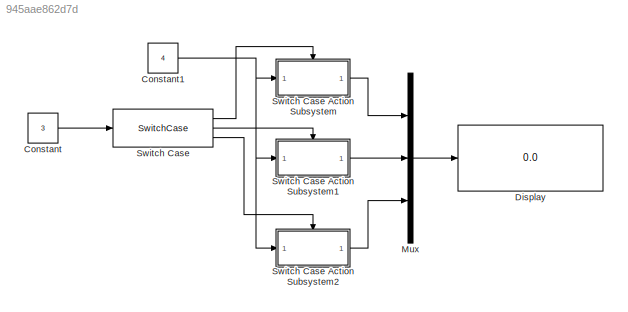
MODEL slx_945aae862d7d
KIND model
CONFIG AbsTol = auto
CONFIG EnableMultiTasking = off
CONFIG FixedStep = auto
CONFIG MaxStep = auto
CONFIG MinStep = auto
CONFIG RelTol = 1e-3
CONFIG SampleTimeConstraint = Unconstrained
CONFIG Solver = VariableStepAuto
CONFIG SolverName = VariableStepAuto
CONFIG StartTime = 0.0
CONFIG StopTime = 10.0
BLOCK [Constant] Constant
  Value = 3
BLOCK [Constant] Constant1
  Value = 4
BLOCK [Display] Display
  Decimation = 1
  Ports = [1]
BLOCK [Mux] Mux
  DisplayOption = bar
  Inputs = 3
  Ports = [3, 1]
BLOCK [SwitchCase] Switch Case
  CaseConditions = {1,2}
  Ports = [1, 3]
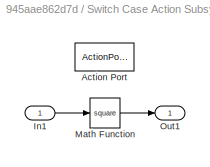
BLOCK [SubSystem] Switch Case Action Subsystem
  Ports = [1, 1, 0, 0, 0, 0, 0, 1]
  RequestExecContextInheritance = off
  TreatAsAtomicUnit = on
BLOCK [ActionPort] Switch Case Action Subsystem/Action Port
  ActionPortLabel = case [ 1 ]:
BLOCK [Inport] Switch Case Action Subsystem/In1
BLOCK [Math] Switch Case Action Subsystem/Math Function
  Operator = square
  Ports = [1, 1]
BLOCK [Outport] Switch Case Action Subsystem/Out1
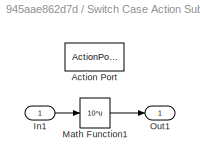
BLOCK [SubSystem] Switch Case Action Subsystem1
  Ports = [1, 1, 0, 0, 0, 0, 0, 1]
  RequestExecContextInheritance = off
  TreatAsAtomicUnit = on
BLOCK [ActionPort] Switch Case Action Subsystem1/Action Port
  ActionPortLabel = case [ 2 ]:
BLOCK [Inport] Switch Case Action Subsystem1/In1
BLOCK [Math] Switch Case Action Subsystem1/Math Function1
  Operator = 10^u
  Ports = [1, 1]
BLOCK [Outport] Switch Case Action Subsystem1/Out1
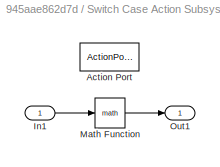
BLOCK [SubSystem] Switch Case Action Subsystem2
  Ports = [1, 1, 0, 0, 0, 0, 0, 1]
  RequestExecContextInheritance = off
  TreatAsAtomicUnit = on
BLOCK [ActionPort] Switch Case Action Subsystem2/Action Port
  ActionPortLabel = default:
BLOCK [Inport] Switch Case Action Subsystem2/In1
BLOCK [Math] Switch Case Action Subsystem2/Math Function
  Ports = [1, 1]
BLOCK [Outport] Switch Case Action Subsystem2/Out1
NET Constant1:1 -> Switch Case Action Subsystem1:1, Switch Case Action Subsystem2:1, Switch Case Action Subsystem:1
LINE Constant:1 -> Switch Case:1
LINE Mux:1 -> Display:1
LINE Switch Case Action Subsystem/In1:1 -> Switch Case Action Subsystem/Math Function:1
LINE Switch Case Action Subsystem/Math Function:1 -> Switch Case Action Subsystem/Out1:1
LINE Switch Case Action Subsystem1/In1:1 -> Switch Case Action Subsystem1/Math Function1:1
LINE Switch Case Action Subsystem1/Math Function1:1 -> Switch Case Action Subsystem1/Out1:1
LINE Switch Case Action Subsystem1:1 -> Mux:2
LINE Switch Case Action Subsystem2/In1:1 -> Switch Case Action Subsystem2/Math Function:1
LINE Switch Case Action Subsystem2/Math Function:1 -> Switch Case Action Subsystem2/Out1:1
LINE Switch Case Action Subsystem2:1 -> Mux:3
LINE Switch Case Action Subsystem:1 -> Mux:1
LINE Switch Case:1 -> Switch Case Action Subsystem:ifaction
LINE Switch Case:2 -> Switch Case Action Subsystem1:ifaction
LINE Switch Case:3 -> Switch Case Action Subsystem2:ifaction
note: NET lines group one-source signal fan-out (src -> all destinations, sorted); 1:1 wires keep LINE
